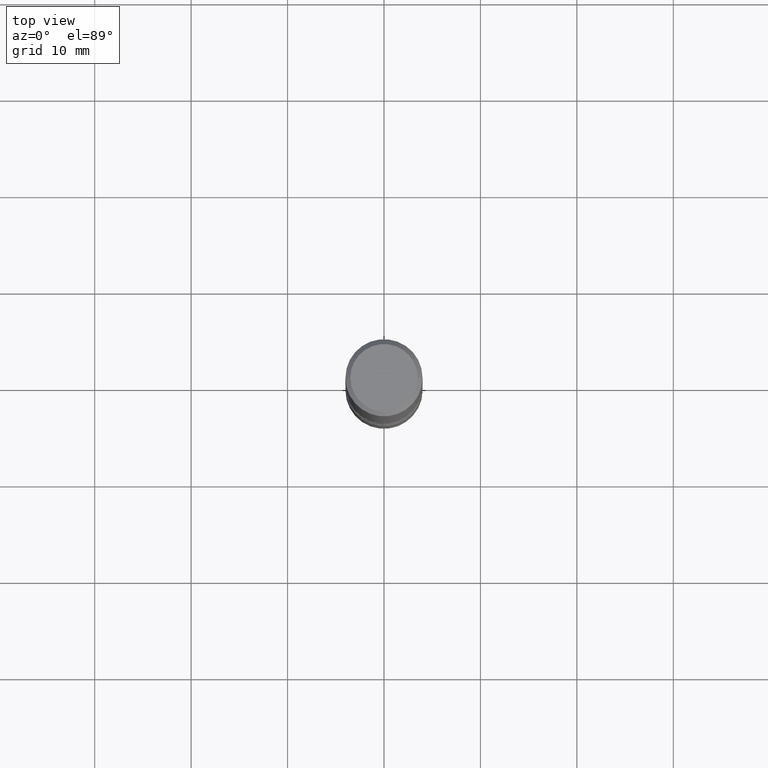
[diagram: clean part render]
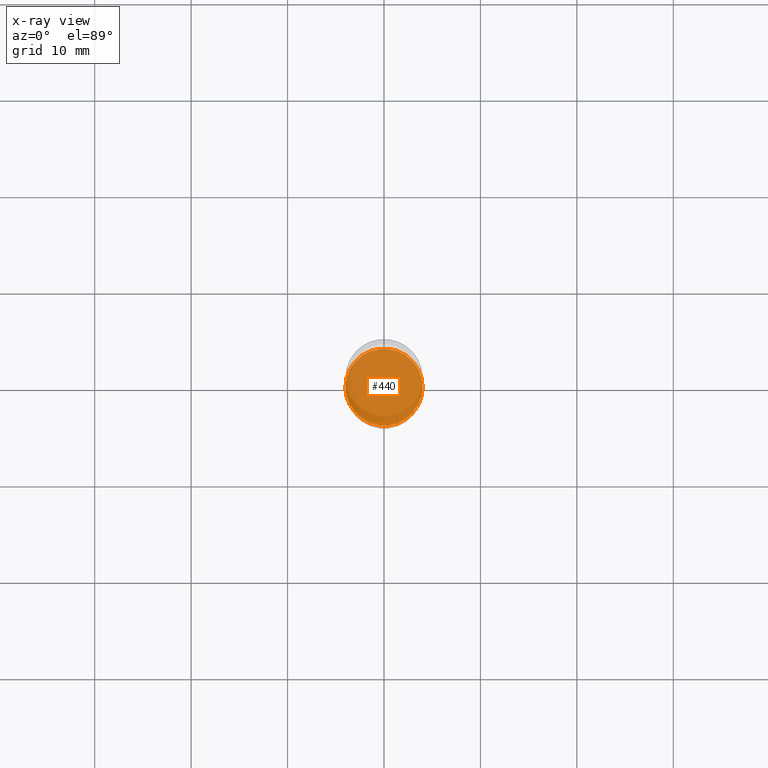
[diagram: x-ray — body ghosted, one internal face saturated and labeled with its STEP entity id]
A machine part, top view, then the same camera in x-ray: the body is ghosted and one INTERNAL B-rep face — a face not visible from any outside direction — is saturated and labeled: STEP entity #440.
In plain terms, the highlighted planar face has unit normal (0, -0, -1).
Its self-contained STEP definition (entity closure, byte-faithful):
#14 = CARTESIAN_POINT ( 'NONE',  ( 0.1575000000000000844, -8.935049894233489031E-15, -2.244099999999999540 ) ) ;
#110 = PLANE ( 'NONE',  #511 ) ;
#114 = FACE_OUTER_BOUND ( 'NONE', #450, .T. ) ;
#129 = VERTEX_POINT ( 'NONE', #265 ) ;
#173 = DIRECTION ( 'NONE',  ( -2.445468806185136597E-29, 3.491481338843145583E-15, 1.000000000000000000 ) ) ;
#194 = EDGE_CURVE ( 'NONE', #520, #129, #517, .T. ) ;
#218 = AXIS2_PLACEMENT_3D ( 'NONE', #241, #490, #452 ) ;
#241 = CARTESIAN_POINT ( 'NONE',  ( 5.487876547960064752E-29, -7.835233272497900762E-15, -2.244099999999999540 ) ) ;
#250 = CARTESIAN_POINT ( 'NONE',  ( 5.487876547960064752E-29, -7.835233272497900762E-15, -2.244099999999999540 ) ) ;
#265 = CARTESIAN_POINT ( 'NONE',  ( -0.1575000000000000844, -7.918943784907207238E-15, -2.244099999999999540 ) ) ;
#268 = DIRECTION ( 'NONE',  ( -1.000000000000000000, 6.982962677686265922E-15, -4.876176775795935793E-29 ) ) ;
#291 = EDGE_CURVE ( 'NONE', #129, #520, #340, .T. ) ;
#303 = ORIENTED_EDGE ( 'NONE', *, *, #194, .T. ) ;
#312 = ORIENTED_EDGE ( 'NONE', *, *, #291, .T. ) ;
#340 = CIRCLE ( 'NONE', #543, 0.1575000000000000844 ) ;
#357 = CARTESIAN_POINT ( 'NONE',  ( 5.487876547960064752E-29, -7.835233272497900762E-15, -2.244099999999999540 ) ) ;
#420 = DIRECTION ( 'NONE',  ( 1.000000000000000000, -6.982962677686264344E-15, 0.000000000000000000 ) ) ;
#437 = DIRECTION ( 'NONE',  ( 2.438088387897960049E-29, -3.491481338843145188E-15, -1.000000000000000000 ) ) ;
#440 = ADVANCED_FACE ( 'NONE', ( #114 ), #110, .F. ) ;
#450 = EDGE_LOOP ( 'NONE', ( #303, #312 ) ) ;
#452 = DIRECTION ( 'NONE',  ( 1.000000000000000000, -6.982962677686264344E-15, 0.000000000000000000 ) ) ;
#490 = DIRECTION ( 'NONE',  ( -2.445468806185136597E-29, 3.491481338843145583E-15, 1.000000000000000000 ) ) ;
#511 = AXIS2_PLACEMENT_3D ( 'NONE', #357, #437, #268 ) ;
#517 = CIRCLE ( 'NONE', #218, 0.1575000000000000844 ) ;
#520 = VERTEX_POINT ( 'NONE', #14 ) ;
#543 = AXIS2_PLACEMENT_3D ( 'NONE', #250, #173, #420 ) ;